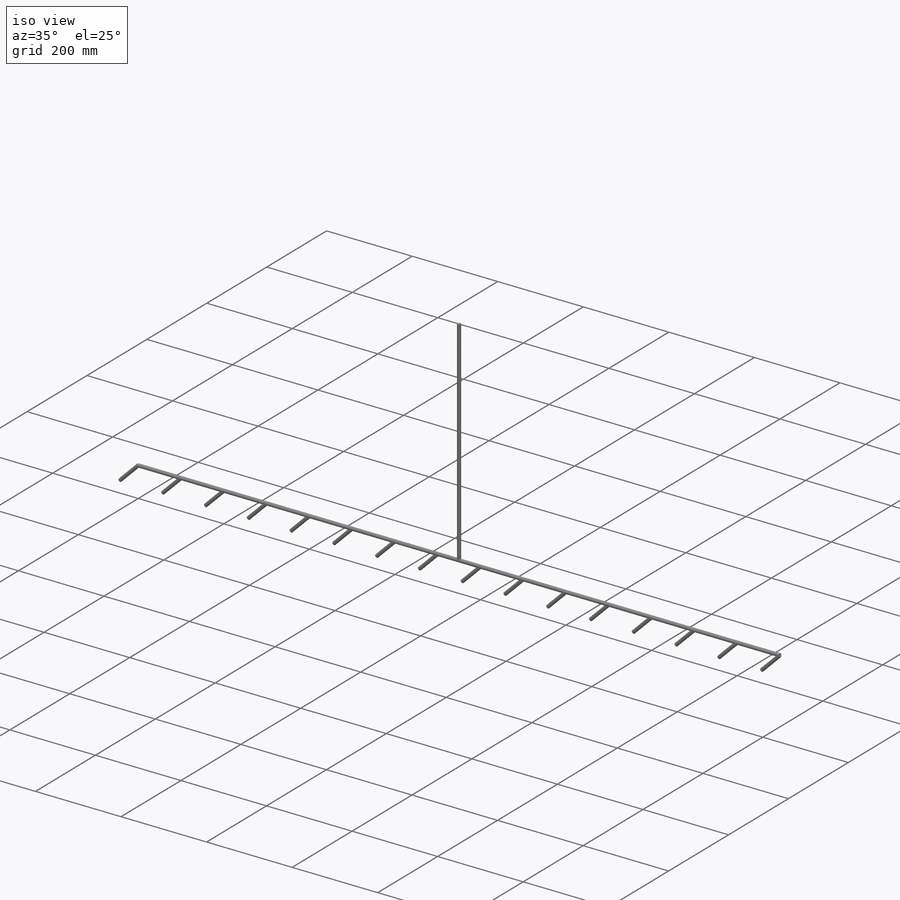
[diagram: iso view]
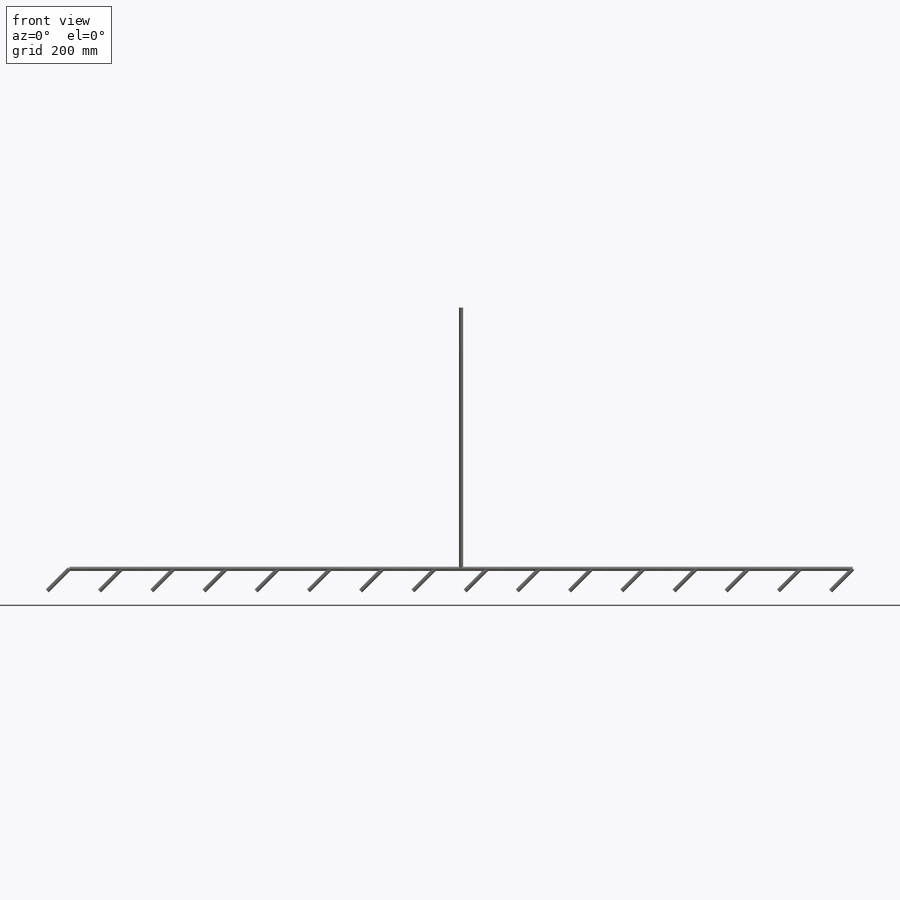
[diagram: front view]
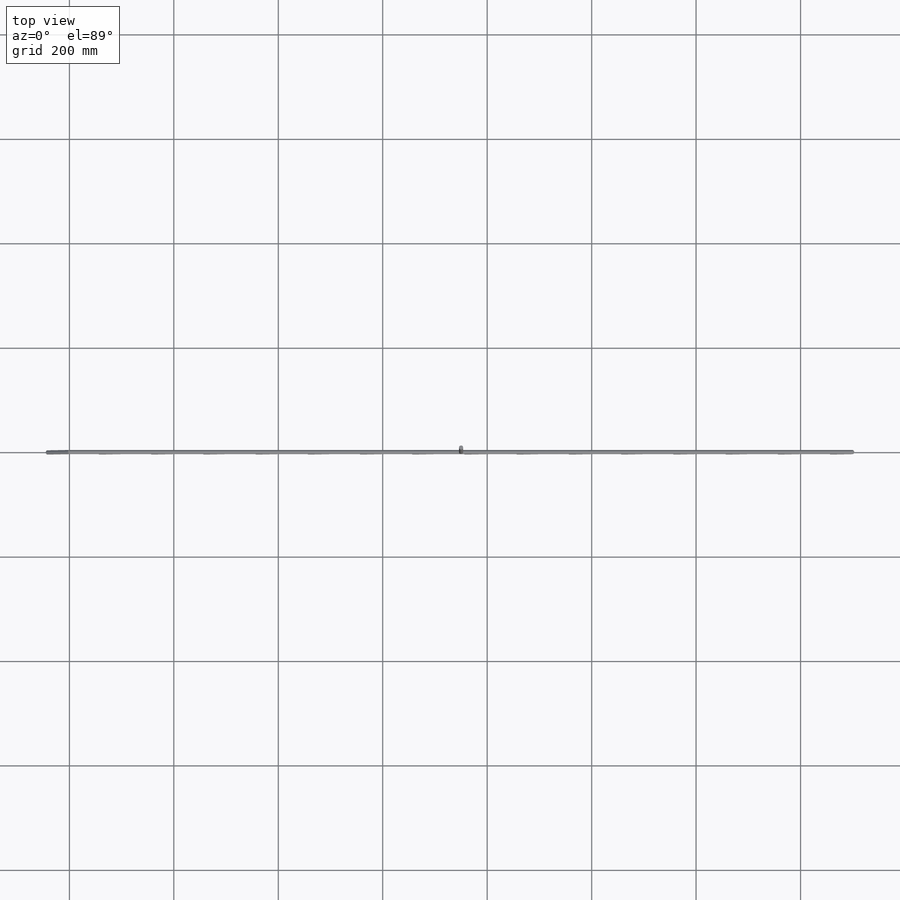
[diagram: top view]
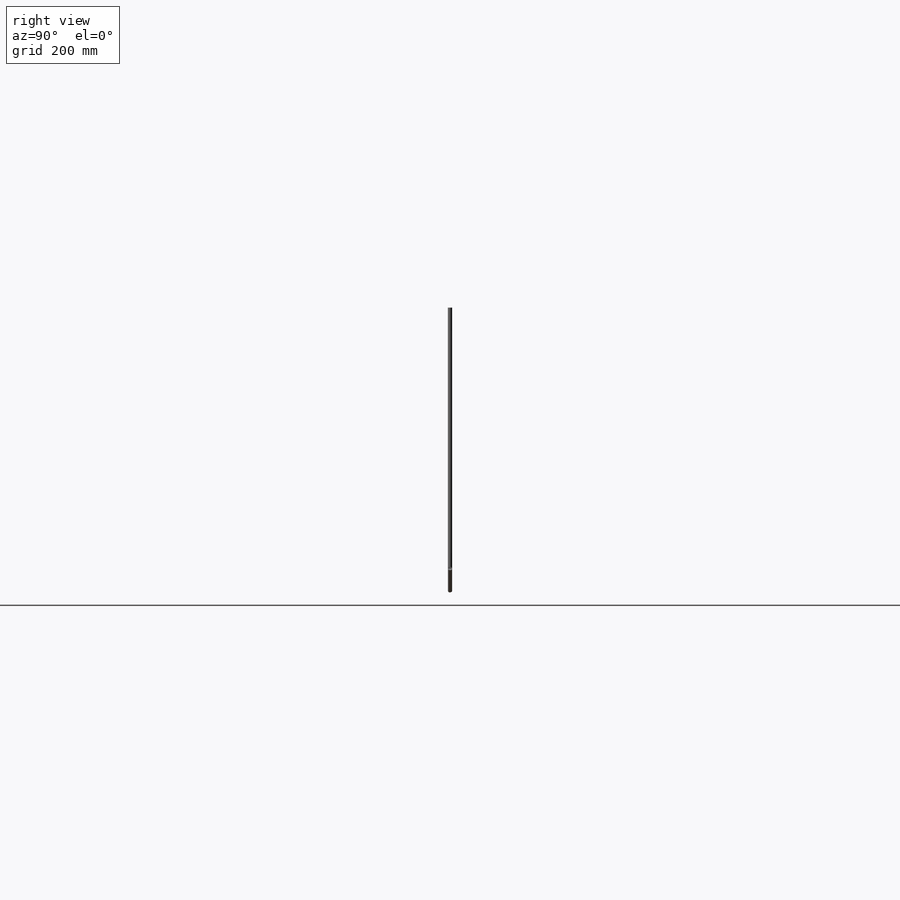
[diagram: right view]
SOLIDWORKS PART (.sldprt)
format: sldprt  version: not decoded by parser v0  size: 158,720 bytes
history: native  units: mm
features: sketch x6, plane x4, sweep x3, material x1, pattern_linear x1 (+13 scaffold rows collapsed)
feature tree (28):
  scaffold x13  (default folders/planes/origin — collapsed)
  material  "Material <sin especificar>"
  plane  "Alzado"
  plane  "Planta"
  plane  "Vista lateral"
  sketch  "Croquis1"  dims[D1=1500.0mm]
  sketch  "Croquis2"  dims[D1=~14.212643mm]
  sweep  "Barrer1"
  sketch  "Croquis3"  dims[D1=60.0mm]
  plane  "Plano1"
  sketch  "Croquis4"  dims[D1=~14.214674mm]
  sweep  "Barrer2"
  sketch  "Croquis5"  dims[D1=500.0mm]
  pattern_linear  "MatrizL1"  Count1=16 Count2=1 Spacing1=100mm Spacing2=50mm
  sketch  "Croquis3D1"  dims[D1=~6.341086mm]
  sweep  "Barrer3"
decode coverage: 7 of 10 modeling features carry decoded parameters
note: ~ marks probable driven/reference dimensions
note: suppression state not decoded; provenance and decode notes live in map.json
